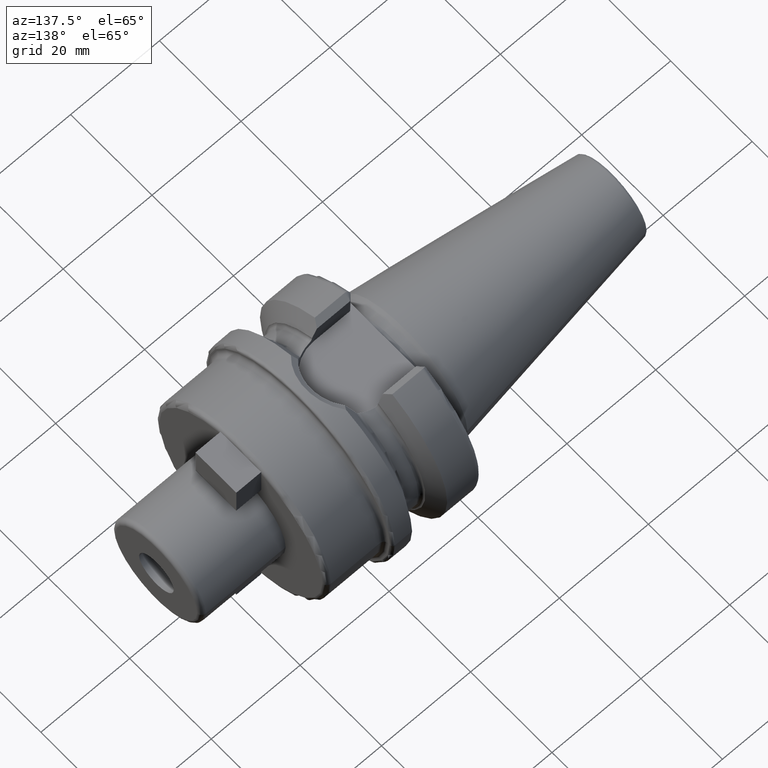
[diagram: clean part render]
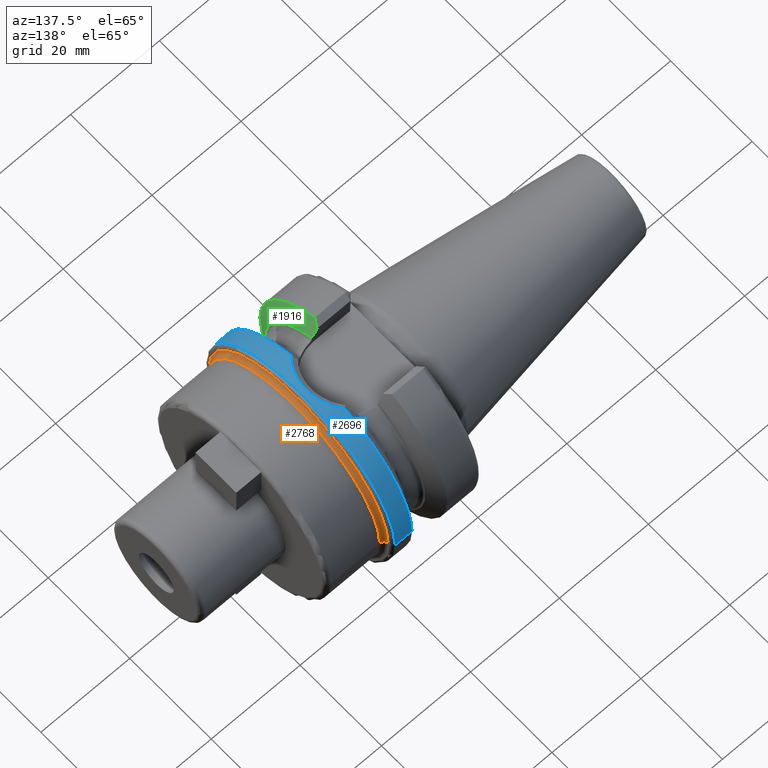
[diagram: same view with three faces highlighted in distinct colors, each labeled with its STEP entity id]
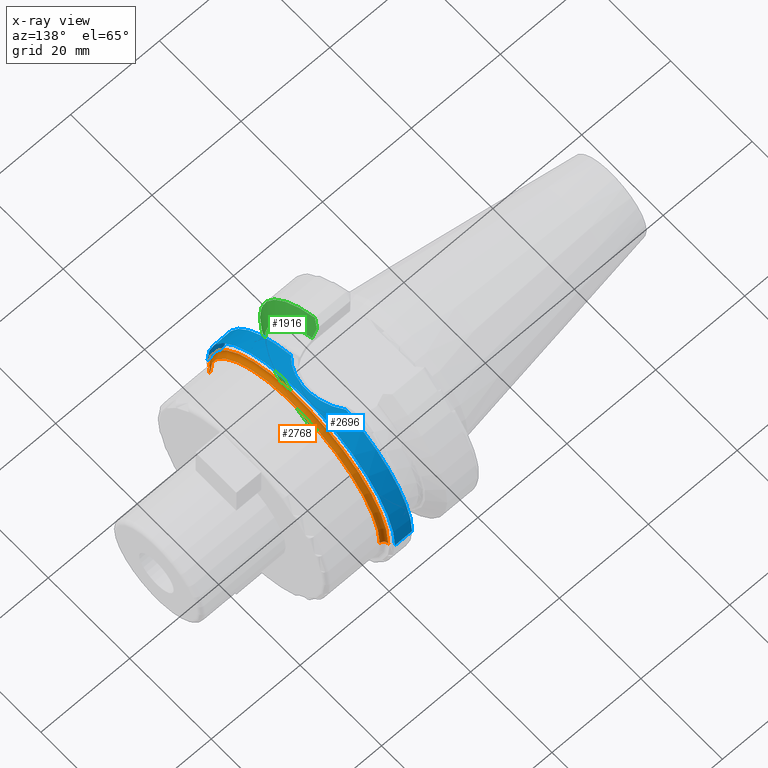
[diagram: x-ray of the same camera — body ghosted, the three highlighted faces saturated]
A machine part, auxiliary view with three faces highlighted in distinct colors.
The next image is the same camera in x-ray (body ghosted, the three faces saturated) — at least one of them is partly hidden behind the body in this view.
Their STEP definitions:

[orange] entity #2768 — the highlighted toroidal blend (fillet) surface has major radius 22 mm and minor (blend) radius 1 mm.
#827=CARTESIAN_POINT('',(2.2E1,0.E0,0.E0));
#828=DIRECTION('',(1.E0,0.E0,0.E0));
#829=DIRECTION('',(0.E0,1.E0,0.E0));
#830=AXIS2_PLACEMENT_3D('',#827,#828,#829);
#832=CARTESIAN_POINT('',(2.3E1,-2.2E1,4.993228053252E-14));
#833=DIRECTION('',(0.E0,0.E0,-1.E0));
#834=DIRECTION('',(-1.E0,8.881784197001E-14,0.E0));
#835=AXIS2_PLACEMENT_3D('',#832,#833,#834);
#837=CARTESIAN_POINT('',(2.3E1,2.2E1,-5.276334924531E-14));
#838=DIRECTION('',(0.E0,0.E0,1.E0));
#839=DIRECTION('',(-1.E0,-9.592326932761E-14,0.E0));
#840=AXIS2_PLACEMENT_3D('',#837,#838,#839);
#847=CARTESIAN_POINT('',(2.3E1,0.E0,0.E0));
#848=DIRECTION('',(1.E0,0.E0,0.E0));
#849=DIRECTION('',(0.E0,1.E0,0.E0));
#850=AXIS2_PLACEMENT_3D('',#847,#848,#849);
#1567=CARTESIAN_POINT('',(2.2E1,-2.2E1,0.E0));
#1568=CARTESIAN_POINT('',(2.2E1,2.2E1,0.E0));
#1569=VERTEX_POINT('',#1567);
#1570=VERTEX_POINT('',#1568);
#1571=CARTESIAN_POINT('',(2.3E1,-2.1E1,0.E0));
#1572=CARTESIAN_POINT('',(2.3E1,2.1E1,0.E0));
#1573=VERTEX_POINT('',#1571);
#1574=VERTEX_POINT('',#1572);
#2756=CARTESIAN_POINT('',(2.3E1,0.E0,0.E0));
#2757=DIRECTION('',(1.E0,0.E0,0.E0));
#2758=DIRECTION('',(0.E0,9.999731921857E-1,-7.322220282677E-3));
#2759=AXIS2_PLACEMENT_3D('',#2756,#2757,#2758);
#2760=TOROIDAL_SURFACE('',#2759,2.2E1,1.E0);
#2761=ORIENTED_EDGE('',*,*,#2736,.F.);
#2762=ORIENTED_EDGE('',*,*,#2751,.T.);
#2764=ORIENTED_EDGE('',*,*,#2763,.T.);
#2765=ORIENTED_EDGE('',*,*,#2747,.F.);
#2766=EDGE_LOOP('',(#2761,#2762,#2764,#2765));
#2767=FACE_OUTER_BOUND('',#2766,.F.);
#2768=ADVANCED_FACE('',(#2767),#2760,.F.);
#831=CIRCLE('',#830,2.2E1);
#836=CIRCLE('',#835,1.E0);
#841=CIRCLE('',#840,1.E0);
#851=CIRCLE('',#850,2.1E1);
#2736=EDGE_CURVE('',#1570,#1569,#831,.T.);
#2747=EDGE_CURVE('',#1569,#1573,#836,.T.);
#2751=EDGE_CURVE('',#1570,#1574,#841,.T.);
#2763=EDGE_CURVE('',#1574,#1573,#851,.T.);

[blue] entity #2696 — the highlighted cylindrical surface (partial cylindrical patch) has radius 22.99 mm, axis along (1, 0, 0).
#231=DIRECTION('',(-1.E0,0.E0,0.E0));
#232=VECTOR('',#231,3.850924158743E0);
#233=CARTESIAN_POINT('',(2.14E1,-2.299E1,0.E0));
#234=LINE('',#233,#232);
#240=DIRECTION('',(-1.E0,0.E0,0.E0));
#241=VECTOR('',#240,3.850924158743E0);
#242=CARTESIAN_POINT('',(2.14E1,2.299E1,0.E0));
#243=LINE('',#242,#241);
#773=CARTESIAN_POINT('',(1.754907584126E1,0.E0,0.E0));
#774=DIRECTION('',(1.E0,0.E0,0.E0));
#775=DIRECTION('',(0.E0,1.E0,0.E0));
#776=AXIS2_PLACEMENT_3D('',#773,#774,#775);
#778=CARTESIAN_POINT('',(2.14E1,0.E0,0.E0));
#779=DIRECTION('',(1.E0,0.E0,0.E0));
#780=DIRECTION('',(0.E0,1.E0,0.E0));
#781=AXIS2_PLACEMENT_3D('',#778,#779,#780);
#783=CARTESIAN_POINT('',(1.754907584126E1,0.E0,0.E0));
#784=DIRECTION('',(1.E0,0.E0,0.E0));
#785=DIRECTION('',(0.E0,-2.941213407634E-1,9.557680874080E-1));
#786=AXIS2_PLACEMENT_3D('',#783,#784,#785);
#788=CARTESIAN_POINT('',(1.754907584126E1,6.761871244710E0,2.197310167614E1));
#789=CARTESIAN_POINT('',(1.768866712313E1,6.617664565275E0,2.201749422993E1));
#790=CARTESIAN_POINT('',(1.821021271727E1,6.042978757577E0,2.218832716973E1));
#791=CARTESIAN_POINT('',(1.898952564952E1,4.933496438632E0,2.247191474384E1));
#792=CARTESIAN_POINT('',(1.971382740307E1,3.367711516438E0,2.276168278345E1));
#793=CARTESIAN_POINT('',(2.014981507134E1,1.713556085139E0,2.294641835617E1));
#794=CARTESIAN_POINT('',(2.029627211771E1,4.350382510885E-2,2.301013849182E1));
#795=CARTESIAN_POINT('',(2.016452454559E1,-1.626373731244E0,2.295278037961E1));
#796=CARTESIAN_POINT('',(1.974352192165E1,-3.283871780498E0,2.277402245506E1));
#797=CARTESIAN_POINT('',(1.903395600771E1,-4.855335925355E0,2.248907028024E1));
#798=CARTESIAN_POINT('',(1.824850274013E1,-5.996433630648E0,2.220149296988E1));
#799=CARTESIAN_POINT('',(1.770930838653E1,-6.596292284182E0,2.202406983618E1));
#800=CARTESIAN_POINT('',(1.754907584126E1,-6.761849624151E0,2.197310832951E1));
#1400=CARTESIAN_POINT('',(1.754907584126E1,2.299E1,0.E0));
#1401=CARTESIAN_POINT('',(1.754907584126E1,6.761871244710E0,2.197310167614E1));
#1402=VERTEX_POINT('',#1400);
#1403=VERTEX_POINT('',#1401);
#1404=CARTESIAN_POINT('',(1.754907584126E1,-2.299E1,0.E0));
#1406=VERTEX_POINT('',#1404);
#1408=CARTESIAN_POINT('',(2.14E1,2.299E1,0.E0));
#1409=VERTEX_POINT('',#1408);
#1410=CARTESIAN_POINT('',(2.14E1,-2.299E1,0.E0));
#1411=VERTEX_POINT('',#1410);
#1412=CARTESIAN_POINT('',(1.754907584126E1,-6.761849624151E0,2.197310832951E1));
#1413=VERTEX_POINT('',#1412);
#2681=CARTESIAN_POINT('',(-5.192E1,0.E0,0.E0));
#2682=DIRECTION('',(1.E0,0.E0,0.E0));
#2683=DIRECTION('',(0.E0,-1.E0,0.E0));
#2684=AXIS2_PLACEMENT_3D('',#2681,#2682,#2683);
#2685=CYLINDRICAL_SURFACE('',#2684,2.299E1);
#2686=ORIENTED_EDGE('',*,*,#2599,.F.);
#2687=ORIENTED_EDGE('',*,*,#1958,.F.);
#2689=ORIENTED_EDGE('',*,*,#2688,.T.);
#2690=ORIENTED_EDGE('',*,*,#1954,.T.);
#2691=ORIENTED_EDGE('',*,*,#2612,.F.);
#2693=ORIENTED_EDGE('',*,*,#2692,.F.);
#2694=EDGE_LOOP('',(#2686,#2687,#2689,#2690,#2691,#2693));
#2695=FACE_OUTER_BOUND('',#2694,.F.);
#2696=ADVANCED_FACE('',(#2695),#2685,.T.);
#777=CIRCLE('',#776,2.299E1);
#782=CIRCLE('',#781,2.299E1);
#787=CIRCLE('',#786,2.299E1);
#801=B_SPLINE_CURVE_WITH_KNOTS('',3,(#788,#789,#790,#791,#792,#793,#794,#795,
#796,#797,#798,#799,#800),.UNSPECIFIED.,.F.,.F.,(4,1,1,1,1,1,1,1,1,1,4),(0.E0,
3.998498018939E-2,1.542527032414E-1,2.685204262935E-1,3.827881493455E-1,
4.970558723975E-1,6.113235954496E-1,7.255913185016E-1,8.398590415537E-1,
9.541267646057E-1,1.E0),.UNSPECIFIED.);
#1954=EDGE_CURVE('',#1411,#1406,#234,.T.);
#1958=EDGE_CURVE('',#1409,#1402,#243,.T.);
#2599=EDGE_CURVE('',#1402,#1403,#777,.T.);
#2612=EDGE_CURVE('',#1413,#1406,#787,.T.);
#2688=EDGE_CURVE('',#1409,#1411,#782,.T.);
#2692=EDGE_CURVE('',#1403,#1413,#801,.T.);

[green] entity #1916 — the highlighted conical surface has half-angle 60 deg.
#185=CARTESIAN_POINT('',(1.15625E1,0.E0,0.E0));
#186=DIRECTION('',(1.E0,0.E0,0.E0));
#187=DIRECTION('',(0.E0,-4.108295537893E-1,9.117121682490E-1));
#188=AXIS2_PLACEMENT_3D('',#185,#186,#187);
#190=CARTESIAN_POINT('',(9.650924158743E0,0.E0,0.E0));
#191=DIRECTION('',(1.E0,0.E0,0.E0));
#192=DIRECTION('',(0.E0,-4.135970895862E-1,9.104600197075E-1));
#193=AXIS2_PLACEMENT_3D('',#190,#191,#192);
#262=CARTESIAN_POINT('',(9.650924158743E0,-9.014912704843E0,-2.114879308434E1));
#263=CARTESIAN_POINT('',(9.741215736396E0,-8.858523104853E0,-2.104545109677E1));
#264=CARTESIAN_POINT('',(9.919221126355E0,-8.548814943786E0,-2.084079645905E1));
#265=CARTESIAN_POINT('',(1.009206903030E1,-8.245248073975E0,-2.064019997638E1));
#266=CARTESIAN_POINT('',(1.017720370416E1,-8.095E0,-2.054091629899E1));
#272=CARTESIAN_POINT('',(1.1155E1,-8.095E0,-1.870865212813E1));
#273=CARTESIAN_POINT('',(1.099795578230E1,-8.095E0,-1.900503145087E1));
#274=CARTESIAN_POINT('',(1.067792752134E1,-8.095E0,-1.960677863313E1));
#275=CARTESIAN_POINT('',(1.034607361255E1,-8.095E0,-2.022653130930E1));
#276=CARTESIAN_POINT('',(1.017720370416E1,-8.095E0,-2.054091629899E1));
#365=CARTESIAN_POINT('',(1.15625E1,-8.084736776791E0,-1.794163255419E1));
#366=CARTESIAN_POINT('',(1.149487170181E1,-8.088145487832E0,-1.806857530355E1));
#367=CARTESIAN_POINT('',(1.135932539469E1,-8.093276332983E0,-1.832336899895E1));
#368=CARTESIAN_POINT('',(1.122320355344E1,-8.095E0,-1.857993600428E1));
#369=CARTESIAN_POINT('',(1.1155E1,-8.095E0,-1.870865212813E1));
#476=CARTESIAN_POINT('',(1.1155E1,-8.095E0,1.870865212813E1));
#477=CARTESIAN_POINT('',(1.122320355344E1,-8.095E0,1.857993600428E1));
#478=CARTESIAN_POINT('',(1.135932539469E1,-8.093276332983E0,1.832336899895E1));
#479=CARTESIAN_POINT('',(1.149487170181E1,-8.088145487832E0,1.806857530355E1));
#480=CARTESIAN_POINT('',(1.15625E1,-8.084736776791E0,1.794163255419E1));
#558=CARTESIAN_POINT('',(1.045597922678E1,-8.095E0,2.002101583337E1));
#559=CARTESIAN_POINT('',(1.057548285870E1,-8.095E0,1.979775066590E1));
#560=CARTESIAN_POINT('',(1.081149734599E1,-8.095E0,1.935576218154E1));
#561=CARTESIAN_POINT('',(1.104150413363E1,-8.095E0,1.892284548399E1));
#562=CARTESIAN_POINT('',(1.1155E1,-8.095E0,1.870865212813E1));
#572=CARTESIAN_POINT('',(1.045597922678E1,-8.095E0,2.002101583337E1));
#573=CARTESIAN_POINT('',(1.032788938418E1,-8.323259168190E0,2.016803144927E1));
#574=CARTESIAN_POINT('',(1.006562496736E1,-8.787118359367E0,2.046679072902E1));
#575=CARTESIAN_POINT('',(9.791185641443E0,-9.265657075205E0,2.077500469739E1));
#576=CARTESIAN_POINT('',(9.650924158743E0,-9.508597089586E0,2.093147585308E1));
#1396=CARTESIAN_POINT('',(1.15625E1,-8.084736776791E0,1.794163255419E1));
#1397=CARTESIAN_POINT('',(1.15625E1,-8.084736776791E0,-1.794163255419E1));
#1398=VERTEX_POINT('',#1396);
#1399=VERTEX_POINT('',#1397);
#1500=VERTEX_POINT('',#558);
#1501=VERTEX_POINT('',#562);
#1506=VERTEX_POINT('',#272);
#1507=VERTEX_POINT('',#276);
#1510=CARTESIAN_POINT('',(9.650924158743E0,-9.508597089586E0,2.093147585308E1));
#1511=CARTESIAN_POINT('',(9.650924158743E0,-9.014912704843E0,
-2.114879308434E1));
#1512=VERTEX_POINT('',#1510);
#1513=VERTEX_POINT('',#1511);
#1893=CARTESIAN_POINT('',(1.060671207937E1,0.E0,0.E0));
#1894=DIRECTION('',(-1.E0,0.E0,0.E0));
#1895=DIRECTION('',(0.E0,1.E0,0.E0));
#1896=AXIS2_PLACEMENT_3D('',#1893,#1894,#1895);
#1897=CONICAL_SURFACE('',#1896,2.133452676021E1,6.E1);
#1899=ORIENTED_EDGE('',*,*,#1898,.T.);
#1901=ORIENTED_EDGE('',*,*,#1900,.T.);
#1903=ORIENTED_EDGE('',*,*,#1902,.T.);
#1905=ORIENTED_EDGE('',*,*,#1904,.F.);
#1907=ORIENTED_EDGE('',*,*,#1906,.F.);
#1909=ORIENTED_EDGE('',*,*,#1908,.F.);
#1911=ORIENTED_EDGE('',*,*,#1910,.T.);
#1913=ORIENTED_EDGE('',*,*,#1912,.T.);
#1914=EDGE_LOOP('',(#1899,#1901,#1903,#1905,#1907,#1909,#1911,#1913));
#1915=FACE_OUTER_BOUND('',#1914,.F.);
#1916=ADVANCED_FACE('',(#1915),#1897,.T.);
#189=CIRCLE('',#188,1.967905352042E1);
#194=CIRCLE('',#193,2.299E1);
#267=B_SPLINE_CURVE_WITH_KNOTS('',3,(#262,#263,#264,#265,#266),.UNSPECIFIED.,
.F.,.F.,(4,1,4),(0.E0,5.E-1,1.E0),.UNSPECIFIED.);
#277=B_SPLINE_CURVE_WITH_KNOTS('',3,(#272,#273,#274,#275,#276),.UNSPECIFIED.,
.F.,.F.,(4,1,4),(0.E0,5.E-1,1.E0),.UNSPECIFIED.);
#370=B_SPLINE_CURVE_WITH_KNOTS('',3,(#365,#366,#367,#368,#369),.UNSPECIFIED.,
.F.,.F.,(4,1,4),(0.E0,5.E-1,1.E0),.UNSPECIFIED.);
#481=B_SPLINE_CURVE_WITH_KNOTS('',3,(#476,#477,#478,#479,#480),.UNSPECIFIED.,
.F.,.F.,(4,1,4),(0.E0,5.E-1,1.E0),.UNSPECIFIED.);
#563=B_SPLINE_CURVE_WITH_KNOTS('',3,(#558,#559,#560,#561,#562),.UNSPECIFIED.,
.F.,.F.,(4,1,4),(0.E0,5.E-1,1.E0),.UNSPECIFIED.);
#577=B_SPLINE_CURVE_WITH_KNOTS('',3,(#572,#573,#574,#575,#576),.UNSPECIFIED.,
.F.,.F.,(4,1,4),(0.E0,5.E-1,1.E0),.UNSPECIFIED.);
#1898=EDGE_CURVE('',#1398,#1399,#189,.T.);
#1900=EDGE_CURVE('',#1399,#1506,#370,.T.);
#1902=EDGE_CURVE('',#1506,#1507,#277,.T.);
#1904=EDGE_CURVE('',#1513,#1507,#267,.T.);
#1906=EDGE_CURVE('',#1512,#1513,#194,.T.);
#1908=EDGE_CURVE('',#1500,#1512,#577,.T.);
#1910=EDGE_CURVE('',#1500,#1501,#563,.T.);
#1912=EDGE_CURVE('',#1501,#1398,#481,.T.);